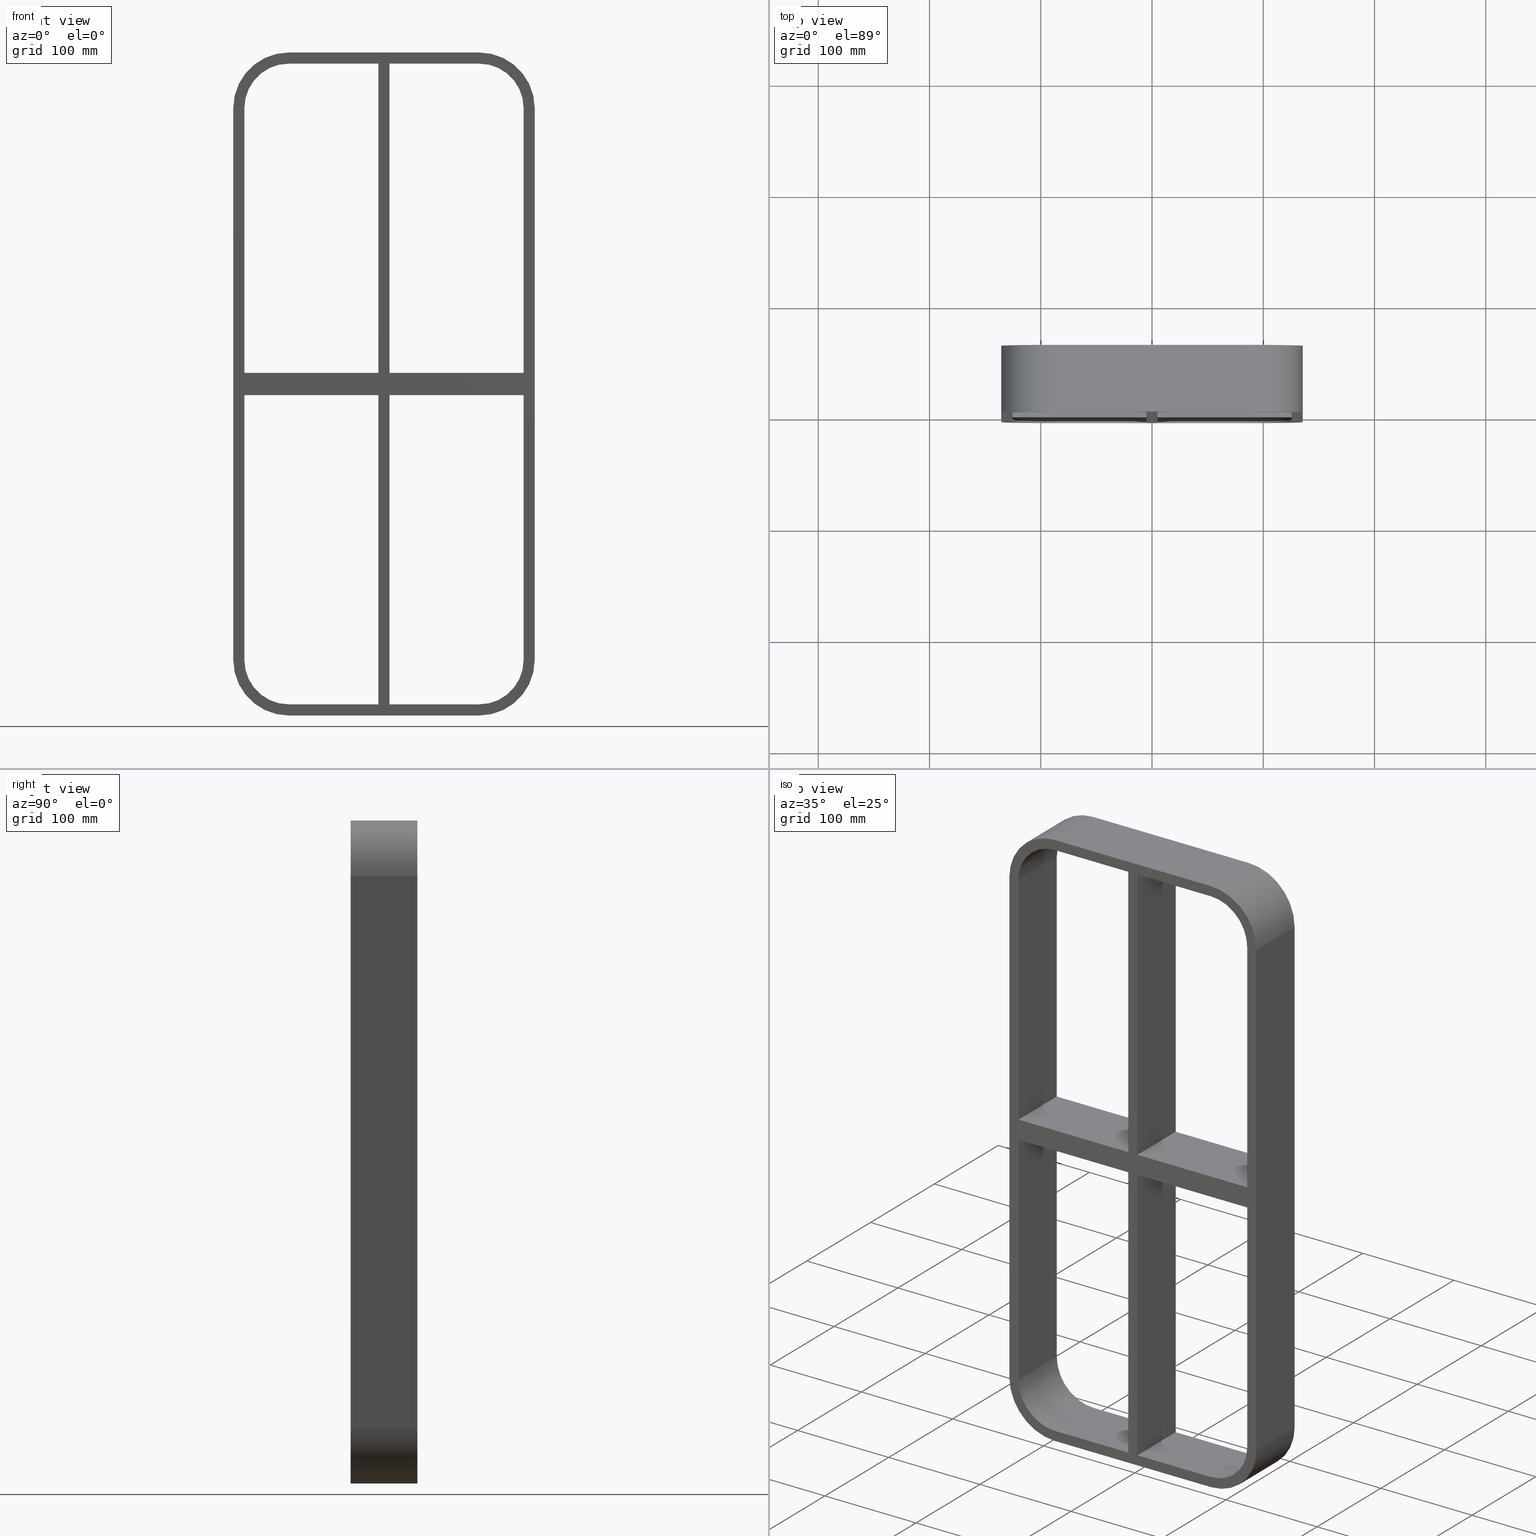
[diagram: canonical four-view strip — front | top / right | iso, engineering-drawing reading convention]
A machine part, canonical four-view strip (front | top / right | iso — engineering-drawing reading convention). The complete STEP part file that produces these views, byte-faithful:
ISO-10303-21;
HEADER;
/****************************************************************
 * Generated by software with PDElib inside                    *
 * PDElib Version v51a, created Wed 11/30/2011                  *
 * ITI Transcendata (http://www.transcendata.com/)              *
 ****************************************************************/
FILE_DESCRIPTION((''),'2;1');
FILE_NAME('N:\\Projects\\Ongoing_Projects\\12403 Transit Designer\\Product-data\\Product Data\\Transit designer Cad Generator\\CreatedFiles\\STEP\\SRCR40-8+8X2.stp','2014-10-31T11:31:51',(''),(''),'Autodesk Inventor 2013','Autodesk Inventor 2013','');
FILE_SCHEMA(('AUTOMOTIVE_DESIGN { 1 0 10303 214 1 1 1 1 }'));
ENDSEC;
DATA;
#5=APPLICATION_CONTEXT('automotive design');
#6=APPLICATION_PROTOCOL_DEFINITION('International Standard','automotive_design',2001,#5);
#7=PRODUCT_CONTEXT('',#5,'mechanical');
#8=PRODUCT('GH-ISO','GH-ISO',$,(#7));
#9=PRODUCT_RELATED_PRODUCT_CATEGORY('part',$,(#8));
#10=PRODUCT_DEFINITION_FORMATION('',$,#8);
#11=PRODUCT_DEFINITION_CONTEXT('part definition',#5,'design');
#12=PRODUCT_DEFINITION('',$,#10,#11);
#18=(NAMED_UNIT(*)PLANE_ANGLE_UNIT()SI_UNIT($,.RADIAN.));
#19=DIMENSIONAL_EXPONENTS(0.0,0.0,0.0,0.0,0.0,0.0,0.0);
#20=PLANE_ANGLE_MEASURE_WITH_UNIT(PLANE_ANGLE_MEASURE(0.0174532925),#18);
#24=(CONVERSION_BASED_UNIT('DEGREE',#20)NAMED_UNIT(#19)PLANE_ANGLE_UNIT());
#28=(NAMED_UNIT(*)SI_UNIT($,.STERADIAN.)SOLID_ANGLE_UNIT());
#32=(LENGTH_UNIT()NAMED_UNIT(*)SI_UNIT(.MILLI.,.METRE.));
#34=UNCERTAINTY_MEASURE_WITH_UNIT(LENGTH_MEASURE(0.01),#32,'DISTANCE_ACCURACY_VALUE','');
#36=(GEOMETRIC_REPRESENTATION_CONTEXT(3)GLOBAL_UNCERTAINTY_ASSIGNED_CONTEXT((#34))GLOBAL_UNIT_ASSIGNED_CONTEXT((#24,#28,#32))REPRESENTATION_CONTEXT('None','None'));
#37=AXIS2_PLACEMENT_3D('',#38,#39,#40);
#38=CARTESIAN_POINT('',(0.0,0.0,0.0));
#39=DIRECTION('',(0.0,0.0,1.0));
#40=DIRECTION('',(1.0,0.0,0.0));
#41=SHAPE_REPRESENTATION('',(#37),#36);
#42=PRODUCT_DEFINITION_SHAPE('','',#12);
#43=SHAPE_DEFINITION_REPRESENTATION(#42,#41);
#49=(NAMED_UNIT(*)PLANE_ANGLE_UNIT()SI_UNIT($,.RADIAN.));
#50=DIMENSIONAL_EXPONENTS(0.0,0.0,0.0,0.0,0.0,0.0,0.0);
#51=PLANE_ANGLE_MEASURE_WITH_UNIT(PLANE_ANGLE_MEASURE(0.0174532925),#49);
#55=(CONVERSION_BASED_UNIT('DEGREE',#51)NAMED_UNIT(#50)PLANE_ANGLE_UNIT());
#59=(NAMED_UNIT(*)SI_UNIT($,.STERADIAN.)SOLID_ANGLE_UNIT());
#63=(LENGTH_UNIT()NAMED_UNIT(*)SI_UNIT(.MILLI.,.METRE.));
#65=UNCERTAINTY_MEASURE_WITH_UNIT(LENGTH_MEASURE(0.000001),#63,'DISTANCE_ACCURACY_VALUE','');
#67=(GEOMETRIC_REPRESENTATION_CONTEXT(3)GLOBAL_UNCERTAINTY_ASSIGNED_CONTEXT((#65))GLOBAL_UNIT_ASSIGNED_CONTEXT((#55,#59,#63))REPRESENTATION_CONTEXT('','3D'));
#68=CARTESIAN_POINT('',(125.50000000000182,-3.0,-10.00000000000929));
#69=DIRECTION('',(0.0,0.0,-1.0));
#70=DIRECTION('',(-1.0,0.0,0.0));
#71=AXIS2_PLACEMENT_3D('',#68,#69,#70);
#72=PLANE('',#71);
#73=CARTESIAN_POINT('',(5.0,57.0,-10.000000000009333));
#74=VERTEX_POINT('',#73);
#75=CARTESIAN_POINT('',(5.0,-3.0,-10.000000000009333));
#76=VERTEX_POINT('',#75);
#77=CARTESIAN_POINT('',(5.0,57.0,-10.000000000009347));
#78=DIRECTION('',(0.0,-1.0,0.0));
#79=VECTOR('',#78,60.0);
#80=LINE('',#77,#79);
#81=EDGE_CURVE('',#74,#76,#80,.T.);
#82=ORIENTED_EDGE('',*,*,#81,.F.);
#83=CARTESIAN_POINT('',(125.5000000000018,57.0,-10.00000000000929));
#84=VERTEX_POINT('',#83);
#85=CARTESIAN_POINT('',(125.50000000000182,57.0,-10.00000000000929));
#86=DIRECTION('',(-1.0,0.0,0.0));
#87=VECTOR('',#86,120.50000000000182);
#88=LINE('',#85,#87);
#89=EDGE_CURVE('',#84,#74,#88,.T.);
#90=ORIENTED_EDGE('',*,*,#89,.F.);
#91=CARTESIAN_POINT('',(125.50000000000182,-3.0,-10.00000000000929));
#92=VERTEX_POINT('',#91);
#93=CARTESIAN_POINT('',(125.50000000000004,-3.0,-10.000000000009308));
#94=DIRECTION('',(0.0,1.0,0.0));
#95=VECTOR('',#94,60.000000000000007);
#96=LINE('',#93,#95);
#97=EDGE_CURVE('',#92,#84,#96,.T.);
#98=ORIENTED_EDGE('',*,*,#97,.F.);
#99=CARTESIAN_POINT('',(125.50000000000182,-3.0,-10.00000000000929));
#100=DIRECTION('',(-1.0,0.0,0.0));
#101=VECTOR('',#100,120.50000000000182);
#102=LINE('',#99,#101);
#103=EDGE_CURVE('',#92,#76,#102,.T.);
#104=ORIENTED_EDGE('',*,*,#103,.T.);
#105=EDGE_LOOP('',(#82,#90,#98,#104));
#106=FACE_OUTER_BOUND('',#105,.T.);
#107=ADVANCED_FACE('',(#106),#72,.T.);
#108=CARTESIAN_POINT('',(125.50000000000182,-3.0,-10.00000000000929));
#109=DIRECTION('',(0.0,0.0,-1.0));
#110=DIRECTION('',(-1.0,0.0,0.0));
#111=AXIS2_PLACEMENT_3D('',#108,#109,#110);
#112=PLANE('',#111);
#113=CARTESIAN_POINT('',(-5.000000000001457,-3.0,-10.000000000009337));
#114=VERTEX_POINT('',#113);
#115=CARTESIAN_POINT('',(-5.000000000001457,57.0,-10.000000000009337));
#116=VERTEX_POINT('',#115);
#117=CARTESIAN_POINT('',(-5.000000000001457,-3.0,-10.000000000009347));
#118=DIRECTION('',(0.0,1.0,0.0));
#119=VECTOR('',#118,60.0);
#120=LINE('',#117,#119);
#121=EDGE_CURVE('',#114,#116,#120,.T.);
#122=ORIENTED_EDGE('',*,*,#121,.F.);
#123=CARTESIAN_POINT('',(-125.49999999999977,-3.0,-10.000000000009379));
#124=VERTEX_POINT('',#123);
#125=CARTESIAN_POINT('',(-5.00000000000145,-3.0,-10.000000000009337));
#126=DIRECTION('',(-1.0,0.0,0.0));
#127=VECTOR('',#126,120.49999999999832);
#128=LINE('',#125,#127);
#129=EDGE_CURVE('',#114,#124,#128,.T.);
#130=ORIENTED_EDGE('',*,*,#129,.T.);
#131=CARTESIAN_POINT('',(-125.49999999999977,57.0,-10.000000000009379));
#132=VERTEX_POINT('',#131);
#133=CARTESIAN_POINT('',(-125.50000000000004,57.000000000000007,-10.000000000009406));
#134=DIRECTION('',(0.0,-1.0,0.0));
#135=VECTOR('',#134,60.000000000000007);
#136=LINE('',#133,#135);
#137=EDGE_CURVE('',#132,#124,#136,.T.);
#138=ORIENTED_EDGE('',*,*,#137,.F.);
#139=CARTESIAN_POINT('',(-5.00000000000145,57.0,-10.000000000009337));
#140=DIRECTION('',(-1.0,0.0,0.0));
#141=VECTOR('',#140,120.49999999999832);
#142=LINE('',#139,#141);
#143=EDGE_CURVE('',#116,#132,#142,.T.);
#144=ORIENTED_EDGE('',*,*,#143,.F.);
#145=EDGE_LOOP('',(#122,#130,#138,#144));
#146=FACE_OUTER_BOUND('',#145,.T.);
#147=ADVANCED_FACE('',(#146),#112,.T.);
#148=CARTESIAN_POINT('',(-125.49999999999977,-3.0,10.0));
#149=DIRECTION('',(0.0,0.0,1.0));
#150=DIRECTION('',(1.0,0.0,0.0));
#151=AXIS2_PLACEMENT_3D('',#148,#149,#150);
#152=PLANE('',#151);
#153=CARTESIAN_POINT('',(5.0,-3.0,10.0));
#154=VERTEX_POINT('',#153);
#155=CARTESIAN_POINT('',(5.0,57.0,10.0));
#156=VERTEX_POINT('',#155);
#157=CARTESIAN_POINT('',(5.0,-3.0,10.0));
#158=DIRECTION('',(0.0,1.0,0.0));
#159=VECTOR('',#158,60.0);
#160=LINE('',#157,#159);
#161=EDGE_CURVE('',#154,#156,#160,.T.);
#162=ORIENTED_EDGE('',*,*,#161,.F.);
#163=CARTESIAN_POINT('',(125.4999999999999,-3.0,10.0));
#164=VERTEX_POINT('',#163);
#165=CARTESIAN_POINT('',(5.0,-3.0,10.0));
#166=DIRECTION('',(1.0,0.0,0.0));
#167=VECTOR('',#166,120.49999999999989);
#168=LINE('',#165,#167);
#169=EDGE_CURVE('',#154,#164,#168,.T.);
#170=ORIENTED_EDGE('',*,*,#169,.T.);
#171=CARTESIAN_POINT('',(125.49999999999989,57.0,10.0));
#172=VERTEX_POINT('',#171);
#173=CARTESIAN_POINT('',(125.50000000000004,57.000000000000007,10.0));
#174=DIRECTION('',(0.0,-1.0,0.0));
#175=VECTOR('',#174,60.000000000000007);
#176=LINE('',#173,#175);
#177=EDGE_CURVE('',#172,#164,#176,.T.);
#178=ORIENTED_EDGE('',*,*,#177,.F.);
#179=CARTESIAN_POINT('',(5.0,57.0,10.0));
#180=DIRECTION('',(1.0,0.0,0.0));
#181=VECTOR('',#180,120.49999999999989);
#182=LINE('',#179,#181);
#183=EDGE_CURVE('',#156,#172,#182,.T.);
#184=ORIENTED_EDGE('',*,*,#183,.F.);
#185=EDGE_LOOP('',(#162,#170,#178,#184));
#186=FACE_OUTER_BOUND('',#185,.T.);
#187=ADVANCED_FACE('',(#186),#152,.T.);
#188=CARTESIAN_POINT('',(-125.49999999999977,-3.0,10.0));
#189=DIRECTION('',(0.0,0.0,1.0));
#190=DIRECTION('',(1.0,0.0,0.0));
#191=AXIS2_PLACEMENT_3D('',#188,#189,#190);
#192=PLANE('',#191);
#193=CARTESIAN_POINT('',(-5.000000000001457,57.0,10.0));
#194=VERTEX_POINT('',#193);
#195=CARTESIAN_POINT('',(-5.000000000001457,-3.0,10.0));
#196=VERTEX_POINT('',#195);
#197=CARTESIAN_POINT('',(-5.000000000001457,57.0,10.0));
#198=DIRECTION('',(0.0,-1.0,0.0));
#199=VECTOR('',#198,60.0);
#200=LINE('',#197,#199);
#201=EDGE_CURVE('',#194,#196,#200,.T.);
#202=ORIENTED_EDGE('',*,*,#201,.F.);
#203=CARTESIAN_POINT('',(-125.49999999999977,57.0,10.0));
#204=VERTEX_POINT('',#203);
#205=CARTESIAN_POINT('',(-125.49999999999977,57.0,10.0));
#206=DIRECTION('',(1.0,0.0,0.0));
#207=VECTOR('',#206,120.49999999999832);
#208=LINE('',#205,#207);
#209=EDGE_CURVE('',#204,#194,#208,.T.);
#210=ORIENTED_EDGE('',*,*,#209,.F.);
#211=CARTESIAN_POINT('',(-125.49999999999977,-3.0,10.0));
#212=VERTEX_POINT('',#211);
#213=CARTESIAN_POINT('',(-125.50000000000004,-3.0,10.0));
#214=DIRECTION('',(0.0,1.0,0.0));
#215=VECTOR('',#214,60.000000000000007);
#216=LINE('',#213,#215);
#217=EDGE_CURVE('',#212,#204,#216,.T.);
#218=ORIENTED_EDGE('',*,*,#217,.F.);
#219=CARTESIAN_POINT('',(-125.49999999999977,-3.0,10.0));
#220=DIRECTION('',(1.0,0.0,0.0));
#221=VECTOR('',#220,120.49999999999832);
#222=LINE('',#219,#221);
#223=EDGE_CURVE('',#212,#196,#222,.T.);
#224=ORIENTED_EDGE('',*,*,#223,.T.);
#225=EDGE_LOOP('',(#202,#210,#218,#224));
#226=FACE_OUTER_BOUND('',#225,.T.);
#227=ADVANCED_FACE('',(#226),#192,.T.);
#228=CARTESIAN_POINT('',(-125.50000000000004,0.0,-288.00000000000006));
#229=DIRECTION('',(-1.0,0.0,0.0));
#230=DIRECTION('',(0.0,0.0,1.0));
#231=AXIS2_PLACEMENT_3D('',#228,#229,#230);
#232=PLANE('',#231);
#233=ORIENTED_EDGE('',*,*,#217,.T.);
#234=CARTESIAN_POINT('',(-125.50000000000004,57.0,248.00000000000006));
#235=VERTEX_POINT('',#234);
#236=CARTESIAN_POINT('',(-125.50000000000004,57.0,248.0));
#237=DIRECTION('',(0.0,0.0,-1.0));
#238=VECTOR('',#237,238.0);
#239=LINE('',#236,#238);
#240=EDGE_CURVE('',#235,#204,#239,.T.);
#241=ORIENTED_EDGE('',*,*,#240,.F.);
#242=CARTESIAN_POINT('',(-125.50000000000004,-3.0,248.00000000000006));
#243=VERTEX_POINT('',#242);
#244=CARTESIAN_POINT('',(-125.50000000000004,-3.0,248.00000000000006));
#245=DIRECTION('',(0.0,1.0,0.0));
#246=VECTOR('',#245,60.0);
#247=LINE('',#244,#246);
#248=EDGE_CURVE('',#243,#235,#247,.T.);
#249=ORIENTED_EDGE('',*,*,#248,.F.);
#250=CARTESIAN_POINT('',(-125.50000000000004,-3.0,10.0));
#251=DIRECTION('',(0.0,0.0,1.0));
#252=VECTOR('',#251,238.0);
#253=LINE('',#250,#252);
#254=EDGE_CURVE('',#212,#243,#253,.T.);
#255=ORIENTED_EDGE('',*,*,#254,.F.);
#256=EDGE_LOOP('',(#233,#241,#249,#255));
#257=FACE_OUTER_BOUND('',#256,.T.);
#258=ADVANCED_FACE('',(#257),#232,.F.);
#259=CARTESIAN_POINT('',(125.50000000000004,0.0,288.00000000000006));
#260=DIRECTION('',(1.0,0.0,0.0));
#261=DIRECTION('',(0.0,0.0,-1.0));
#262=AXIS2_PLACEMENT_3D('',#259,#260,#261);
#263=PLANE('',#262);
#264=ORIENTED_EDGE('',*,*,#97,.T.);
#265=CARTESIAN_POINT('',(125.50000000000004,57.0,-248.00000000000006));
#266=VERTEX_POINT('',#265);
#267=CARTESIAN_POINT('',(125.50000000000004,57.0,-248.00000000000009));
#268=DIRECTION('',(0.0,0.0,1.0));
#269=VECTOR('',#268,237.99999999999079);
#270=LINE('',#267,#269);
#271=EDGE_CURVE('',#266,#84,#270,.T.);
#272=ORIENTED_EDGE('',*,*,#271,.F.);
#273=CARTESIAN_POINT('',(125.50000000000004,-3.0,-248.00000000000006));
#274=VERTEX_POINT('',#273);
#275=CARTESIAN_POINT('',(125.50000000000004,-3.0,-248.00000000000006));
#276=DIRECTION('',(0.0,1.0,0.0));
#277=VECTOR('',#276,60.0);
#278=LINE('',#275,#277);
#279=EDGE_CURVE('',#274,#266,#278,.T.);
#280=ORIENTED_EDGE('',*,*,#279,.F.);
#281=CARTESIAN_POINT('',(125.50000000000004,-3.0,-10.000000000009294));
#282=DIRECTION('',(0.0,0.0,-1.0));
#283=VECTOR('',#282,237.99999999999079);
#284=LINE('',#281,#283);
#285=EDGE_CURVE('',#92,#274,#284,.T.);
#286=ORIENTED_EDGE('',*,*,#285,.F.);
#287=EDGE_LOOP('',(#264,#272,#280,#286));
#288=FACE_OUTER_BOUND('',#287,.T.);
#289=ADVANCED_FACE('',(#288),#263,.F.);
#290=CARTESIAN_POINT('',(125.50000000000004,0.0,288.00000000000006));
#291=DIRECTION('',(1.0,0.0,0.0));
#292=DIRECTION('',(0.0,0.0,-1.0));
#293=AXIS2_PLACEMENT_3D('',#290,#291,#292);
#294=PLANE('',#293);
#295=ORIENTED_EDGE('',*,*,#177,.T.);
#296=CARTESIAN_POINT('',(125.50000000000004,-3.0,248.00000000000006));
#297=VERTEX_POINT('',#296);
#298=CARTESIAN_POINT('',(125.50000000000004,-3.0,248.00000000000003));
#299=DIRECTION('',(0.0,0.0,-1.0));
#300=VECTOR('',#299,238.00000000000003);
#301=LINE('',#298,#300);
#302=EDGE_CURVE('',#297,#164,#301,.T.);
#303=ORIENTED_EDGE('',*,*,#302,.F.);
#304=CARTESIAN_POINT('',(125.50000000000004,57.0,248.00000000000006));
#305=VERTEX_POINT('',#304);
#306=CARTESIAN_POINT('',(125.50000000000004,57.0,248.00000000000006));
#307=DIRECTION('',(0.0,-1.0,0.0));
#308=VECTOR('',#307,60.0);
#309=LINE('',#306,#308);
#310=EDGE_CURVE('',#305,#297,#309,.T.);
#311=ORIENTED_EDGE('',*,*,#310,.F.);
#312=CARTESIAN_POINT('',(125.50000000000004,57.0,10.0));
#313=DIRECTION('',(0.0,0.0,1.0));
#314=VECTOR('',#313,238.00000000000003);
#315=LINE('',#312,#314);
#316=EDGE_CURVE('',#172,#305,#315,.T.);
#317=ORIENTED_EDGE('',*,*,#316,.F.);
#318=EDGE_LOOP('',(#295,#303,#311,#317));
#319=FACE_OUTER_BOUND('',#318,.T.);
#320=ADVANCED_FACE('',(#319),#294,.F.);
#321=CARTESIAN_POINT('',(-4.489040E-014,57.0,2.950350E-014));
#322=DIRECTION('',(0.0,1.0,0.0));
#323=DIRECTION('',(0.0,0.0,1.0));
#324=AXIS2_PLACEMENT_3D('',#321,#322,#323);
#325=PLANE('',#324);
#326=CARTESIAN_POINT('',(85.499999999999972,57.0,-298.0));
#327=VERTEX_POINT('',#326);
#328=CARTESIAN_POINT('',(135.49999999999997,57.0,-247.99999999999997));
#329=VERTEX_POINT('',#328);
#330=CARTESIAN_POINT('',(85.499999999999972,57.0,-247.99999999999997));
#331=DIRECTION('',(0.0,-1.0,0.0));
#332=DIRECTION('',(0.707106781186547,0.0,-0.707106781186547));
#333=AXIS2_PLACEMENT_3D('',#330,#331,#332);
#334=CIRCLE('',#333,49.999999999999986);
#335=EDGE_CURVE('',#327,#329,#334,.T.);
#336=ORIENTED_EDGE('',*,*,#335,.F.);
#337=CARTESIAN_POINT('',(-85.500000000000043,57.0,-298.0));
#338=VERTEX_POINT('',#337);
#339=CARTESIAN_POINT('',(85.499999999999972,57.0,-298.0));
#340=DIRECTION('',(-1.0,0.0,0.0));
#341=VECTOR('',#340,171.0);
#342=LINE('',#339,#341);
#343=EDGE_CURVE('',#327,#338,#342,.T.);
#344=ORIENTED_EDGE('',*,*,#343,.T.);
#345=CARTESIAN_POINT('',(-135.50000000000006,57.0,-247.99999999999997));
#346=VERTEX_POINT('',#345);
#347=CARTESIAN_POINT('',(-85.500000000000043,57.0,-247.99999999999997));
#348=DIRECTION('',(0.0,-1.0,0.0));
#349=DIRECTION('',(-0.707106781186547,0.0,-0.707106781186547));
#350=AXIS2_PLACEMENT_3D('',#347,#348,#349);
#351=CIRCLE('',#350,49.999999999999986);
#352=EDGE_CURVE('',#346,#338,#351,.T.);
#353=ORIENTED_EDGE('',*,*,#352,.F.);
#354=CARTESIAN_POINT('',(-135.50000000000006,57.0,248.00000000000006));
#355=VERTEX_POINT('',#354);
#356=CARTESIAN_POINT('',(-135.50000000000006,57.0,-248.0));
#357=DIRECTION('',(0.0,0.0,1.0));
#358=VECTOR('',#357,496.0);
#359=LINE('',#356,#358);
#360=EDGE_CURVE('',#346,#355,#359,.T.);
#361=ORIENTED_EDGE('',*,*,#360,.T.);
#362=CARTESIAN_POINT('',(-85.500000000000043,57.0,298.00000000000006));
#363=VERTEX_POINT('',#362);
#364=CARTESIAN_POINT('',(-85.500000000000043,57.0,248.00000000000006));
#365=DIRECTION('',(0.0,-1.0,0.0));
#366=DIRECTION('',(-0.707106781186547,0.0,0.707106781186547));
#367=AXIS2_PLACEMENT_3D('',#364,#365,#366);
#368=CIRCLE('',#367,49.999999999999986);
#369=EDGE_CURVE('',#363,#355,#368,.T.);
#370=ORIENTED_EDGE('',*,*,#369,.F.);
#371=CARTESIAN_POINT('',(85.499999999999972,57.0,298.00000000000006));
#372=VERTEX_POINT('',#371);
#373=CARTESIAN_POINT('',(-85.500000000000057,57.0,298.00000000000006));
#374=DIRECTION('',(1.0,0.0,0.0));
#375=VECTOR('',#374,171.0);
#376=LINE('',#373,#375);
#377=EDGE_CURVE('',#363,#372,#376,.T.);
#378=ORIENTED_EDGE('',*,*,#377,.T.);
#379=CARTESIAN_POINT('',(135.49999999999997,57.0,248.00000000000006));
#380=VERTEX_POINT('',#379);
#381=CARTESIAN_POINT('',(85.499999999999972,57.0,248.00000000000006));
#382=DIRECTION('',(0.0,-1.0,0.0));
#383=DIRECTION('',(0.707106781186547,0.0,0.707106781186547));
#384=AXIS2_PLACEMENT_3D('',#381,#382,#383);
#385=CIRCLE('',#384,49.999999999999986);
#386=EDGE_CURVE('',#380,#372,#385,.T.);
#387=ORIENTED_EDGE('',*,*,#386,.F.);
#388=CARTESIAN_POINT('',(135.49999999999997,57.0,248.00000000000006));
#389=DIRECTION('',(0.0,0.0,-1.0));
#390=VECTOR('',#389,496.0);
#391=LINE('',#388,#390);
#392=EDGE_CURVE('',#380,#329,#391,.T.);
#393=ORIENTED_EDGE('',*,*,#392,.T.);
#394=EDGE_LOOP('',(#336,#344,#353,#361,#370,#378,#387,#393));
#395=FACE_OUTER_BOUND('',#394,.T.);
#396=CARTESIAN_POINT('',(-125.50000000000004,57.0,-248.00000000000006));
#397=VERTEX_POINT('',#396);
#398=CARTESIAN_POINT('',(-125.50000000000004,57.0,-10.000000000009379));
#399=DIRECTION('',(0.0,0.0,-1.0));
#400=VECTOR('',#399,237.99999999999068);
#401=LINE('',#398,#400);
#402=EDGE_CURVE('',#132,#397,#401,.T.);
#403=ORIENTED_EDGE('',*,*,#402,.T.);
#404=CARTESIAN_POINT('',(-85.500000000000043,57.0,-288.00000000000006));
#405=VERTEX_POINT('',#404);
#406=CARTESIAN_POINT('',(-85.500000000000043,57.0,-248.00000000000006));
#407=DIRECTION('',(0.0,1.0,0.0));
#408=DIRECTION('',(-0.707106781186547,0.0,-0.707106781186547));
#409=AXIS2_PLACEMENT_3D('',#406,#407,#408);
#410=CIRCLE('',#409,39.999999999999993);
#411=EDGE_CURVE('',#405,#397,#410,.T.);
#412=ORIENTED_EDGE('',*,*,#411,.F.);
#413=CARTESIAN_POINT('',(-5.000000000001403,57.0,-288.00000000000006));
#414=VERTEX_POINT('',#413);
#415=CARTESIAN_POINT('',(-85.500000000000028,57.0,-288.00000000000006));
#416=DIRECTION('',(1.0,0.0,0.0));
#417=VECTOR('',#416,80.499999999998636);
#418=LINE('',#415,#417);
#419=EDGE_CURVE('',#405,#414,#418,.T.);
#420=ORIENTED_EDGE('',*,*,#419,.T.);
#421=CARTESIAN_POINT('',(-5.000000000001403,57.0,-288.00000000000006));
#422=DIRECTION('',(0.0,0.0,1.0));
#423=VECTOR('',#422,277.99999999999068);
#424=LINE('',#421,#423);
#425=EDGE_CURVE('',#414,#116,#424,.T.);
#426=ORIENTED_EDGE('',*,*,#425,.T.);
#427=ORIENTED_EDGE('',*,*,#143,.T.);
#428=EDGE_LOOP('',(#403,#412,#420,#426,#427));
#429=FACE_BOUND('',#428,.T.);
#430=ORIENTED_EDGE('',*,*,#316,.T.);
#431=CARTESIAN_POINT('',(85.500000000000043,57.0,288.00000000000006));
#432=VERTEX_POINT('',#431);
#433=CARTESIAN_POINT('',(85.500000000000043,57.0,248.00000000000006));
#434=DIRECTION('',(0.0,1.0,0.0));
#435=DIRECTION('',(0.707106781186547,0.0,0.707106781186547));
#436=AXIS2_PLACEMENT_3D('',#433,#434,#435);
#437=CIRCLE('',#436,39.999999999999993);
#438=EDGE_CURVE('',#432,#305,#437,.T.);
#439=ORIENTED_EDGE('',*,*,#438,.F.);
#440=CARTESIAN_POINT('',(5.0,57.0,288.00000000000006));
#441=VERTEX_POINT('',#440);
#442=CARTESIAN_POINT('',(85.500000000000057,57.0,288.00000000000006));
#443=DIRECTION('',(-1.0,0.0,0.0));
#444=VECTOR('',#443,80.500000000000057);
#445=LINE('',#442,#444);
#446=EDGE_CURVE('',#432,#441,#445,.T.);
#447=ORIENTED_EDGE('',*,*,#446,.T.);
#448=CARTESIAN_POINT('',(5.0,57.0,288.00000000000006));
#449=DIRECTION('',(0.0,0.0,-1.0));
#450=VECTOR('',#449,278.00000000000006);
#451=LINE('',#448,#450);
#452=EDGE_CURVE('',#441,#156,#451,.T.);
#453=ORIENTED_EDGE('',*,*,#452,.T.);
#454=ORIENTED_EDGE('',*,*,#183,.T.);
#455=EDGE_LOOP('',(#430,#439,#447,#453,#454));
#456=FACE_BOUND('',#455,.T.);
#457=ORIENTED_EDGE('',*,*,#89,.T.);
#458=CARTESIAN_POINT('',(5.0,57.0,-287.99999999998471));
#459=VERTEX_POINT('',#458);
#460=CARTESIAN_POINT('',(5.0,57.0,-10.000000000009322));
#461=DIRECTION('',(0.0,0.0,-1.0));
#462=VECTOR('',#461,277.99999999997539);
#463=LINE('',#460,#462);
#464=EDGE_CURVE('',#74,#459,#463,.T.);
#465=ORIENTED_EDGE('',*,*,#464,.T.);
#466=CARTESIAN_POINT('',(85.500000000000043,57.0,-288.00000000000006));
#467=VERTEX_POINT('',#466);
#468=CARTESIAN_POINT('',(5.0,57.0,-288.00000000000006));
#469=DIRECTION('',(1.0,0.0,0.0));
#470=VECTOR('',#469,80.500000000000043);
#471=LINE('',#468,#470);
#472=EDGE_CURVE('',#459,#467,#471,.T.);
#473=ORIENTED_EDGE('',*,*,#472,.T.);
#474=CARTESIAN_POINT('',(85.500000000000043,57.0,-248.00000000000006));
#475=DIRECTION('',(0.0,1.0,0.0));
#476=DIRECTION('',(0.707106781186547,0.0,-0.707106781186547));
#477=AXIS2_PLACEMENT_3D('',#474,#475,#476);
#478=CIRCLE('',#477,39.999999999999993);
#479=EDGE_CURVE('',#266,#467,#478,.T.);
#480=ORIENTED_EDGE('',*,*,#479,.F.);
#481=ORIENTED_EDGE('',*,*,#271,.T.);
#482=EDGE_LOOP('',(#457,#465,#473,#480,#481));
#483=FACE_BOUND('',#482,.T.);
#484=ORIENTED_EDGE('',*,*,#209,.T.);
#485=CARTESIAN_POINT('',(-5.00000000000151,57.0,288.00000000000006));
#486=VERTEX_POINT('',#485);
#487=CARTESIAN_POINT('',(-5.000000000001458,57.0,10.0));
#488=DIRECTION('',(0.0,0.0,1.0));
#489=VECTOR('',#488,278.00000000000006);
#490=LINE('',#487,#489);
#491=EDGE_CURVE('',#194,#486,#490,.T.);
#492=ORIENTED_EDGE('',*,*,#491,.T.);
#493=CARTESIAN_POINT('',(-85.500000000000043,57.0,288.00000000000006));
#494=VERTEX_POINT('',#493);
#495=CARTESIAN_POINT('',(-5.000000000001514,57.0,288.00000000000006));
#496=DIRECTION('',(-1.0,0.0,0.0));
#497=VECTOR('',#496,80.499999999998522);
#498=LINE('',#495,#497);
#499=EDGE_CURVE('',#486,#494,#498,.T.);
#500=ORIENTED_EDGE('',*,*,#499,.T.);
#501=CARTESIAN_POINT('',(-85.500000000000043,57.0,248.00000000000006));
#502=DIRECTION('',(0.0,1.0,0.0));
#503=DIRECTION('',(-0.707106781186547,0.0,0.707106781186547));
#504=AXIS2_PLACEMENT_3D('',#501,#502,#503);
#505=CIRCLE('',#504,39.999999999999993);
#506=EDGE_CURVE('',#235,#494,#505,.T.);
#507=ORIENTED_EDGE('',*,*,#506,.F.);
#508=ORIENTED_EDGE('',*,*,#240,.T.);
#509=EDGE_LOOP('',(#484,#492,#500,#507,#508));
#510=FACE_BOUND('',#509,.T.);
#511=ADVANCED_FACE('',(#395,#429,#456,#483,#510),#325,.T.);
#512=CARTESIAN_POINT('',(-5.000000000001403,-3.0,-288.00000000000006));
#513=DIRECTION('',(-1.0,0.0,0.0));
#514=DIRECTION('',(0.0,0.0,1.0));
#515=AXIS2_PLACEMENT_3D('',#512,#513,#514);
#516=PLANE('',#515);
#517=ORIENTED_EDGE('',*,*,#201,.T.);
#518=CARTESIAN_POINT('',(-5.00000000000151,-3.0,288.00000000000006));
#519=VERTEX_POINT('',#518);
#520=CARTESIAN_POINT('',(-5.000000000001458,-3.0,10.0));
#521=DIRECTION('',(0.0,0.0,1.0));
#522=VECTOR('',#521,278.00000000000006);
#523=LINE('',#520,#522);
#524=EDGE_CURVE('',#196,#519,#523,.T.);
#525=ORIENTED_EDGE('',*,*,#524,.T.);
#526=CARTESIAN_POINT('',(-5.00000000000151,57.000000000000007,288.00000000000006));
#527=DIRECTION('',(0.0,-1.0,0.0));
#528=VECTOR('',#527,60.000000000000007);
#529=LINE('',#526,#528);
#530=EDGE_CURVE('',#486,#519,#529,.T.);
#531=ORIENTED_EDGE('',*,*,#530,.F.);
#532=ORIENTED_EDGE('',*,*,#491,.F.);
#533=EDGE_LOOP('',(#517,#525,#531,#532));
#534=FACE_OUTER_BOUND('',#533,.T.);
#535=ADVANCED_FACE('',(#534),#516,.T.);
#536=CARTESIAN_POINT('',(5.0,-3.0,288.00000000000006));
#537=DIRECTION('',(1.0,0.0,0.0));
#538=DIRECTION('',(0.0,0.0,-1.0));
#539=AXIS2_PLACEMENT_3D('',#536,#537,#538);
#540=PLANE('',#539);
#541=ORIENTED_EDGE('',*,*,#161,.T.);
#542=ORIENTED_EDGE('',*,*,#452,.F.);
#543=CARTESIAN_POINT('',(5.0,-3.0,288.00000000000006));
#544=VERTEX_POINT('',#543);
#545=CARTESIAN_POINT('',(5.0,-3.0,288.00000000000006));
#546=DIRECTION('',(0.0,1.0,0.0));
#547=VECTOR('',#546,60.000000000000007);
#548=LINE('',#545,#547);
#549=EDGE_CURVE('',#544,#441,#548,.T.);
#550=ORIENTED_EDGE('',*,*,#549,.F.);
#551=CARTESIAN_POINT('',(5.0,-3.0,288.00000000000006));
#552=DIRECTION('',(0.0,0.0,-1.0));
#553=VECTOR('',#552,278.00000000000006);
#554=LINE('',#551,#553);
#555=EDGE_CURVE('',#544,#154,#554,.T.);
#556=ORIENTED_EDGE('',*,*,#555,.T.);
#557=EDGE_LOOP('',(#541,#542,#550,#556));
#558=FACE_OUTER_BOUND('',#557,.T.);
#559=ADVANCED_FACE('',(#558),#540,.T.);
#560=CARTESIAN_POINT('',(-5.000000000001403,-3.0,-288.00000000000006));
#561=DIRECTION('',(-1.0,0.0,0.0));
#562=DIRECTION('',(0.0,0.0,1.0));
#563=AXIS2_PLACEMENT_3D('',#560,#561,#562);
#564=PLANE('',#563);
#565=ORIENTED_EDGE('',*,*,#121,.T.);
#566=ORIENTED_EDGE('',*,*,#425,.F.);
#567=CARTESIAN_POINT('',(-5.000000000001403,-3.0,-288.00000000000006));
#568=VERTEX_POINT('',#567);
#569=CARTESIAN_POINT('',(-5.000000000001403,-3.0,-288.00000000000006));
#570=DIRECTION('',(0.0,1.0,0.0));
#571=VECTOR('',#570,60.000000000000007);
#572=LINE('',#569,#571);
#573=EDGE_CURVE('',#568,#414,#572,.T.);
#574=ORIENTED_EDGE('',*,*,#573,.F.);
#575=CARTESIAN_POINT('',(-5.000000000001403,-3.0,-288.00000000000006));
#576=DIRECTION('',(0.0,0.0,1.0));
#577=VECTOR('',#576,277.99999999999068);
#578=LINE('',#575,#577);
#579=EDGE_CURVE('',#568,#114,#578,.T.);
#580=ORIENTED_EDGE('',*,*,#579,.T.);
#581=EDGE_LOOP('',(#565,#566,#574,#580));
#582=FACE_OUTER_BOUND('',#581,.T.);
#583=ADVANCED_FACE('',(#582),#564,.T.);
#584=CARTESIAN_POINT('',(5.0,-3.0,288.00000000000006));
#585=DIRECTION('',(1.0,0.0,0.0));
#586=DIRECTION('',(0.0,0.0,-1.0));
#587=AXIS2_PLACEMENT_3D('',#584,#585,#586);
#588=PLANE('',#587);
#589=ORIENTED_EDGE('',*,*,#81,.T.);
#590=CARTESIAN_POINT('',(5.0,-3.0,-287.99999999998471));
#591=VERTEX_POINT('',#590);
#592=CARTESIAN_POINT('',(5.0,-3.0,-10.000000000009322));
#593=DIRECTION('',(0.0,0.0,-1.0));
#594=VECTOR('',#593,277.99999999997539);
#595=LINE('',#592,#594);
#596=EDGE_CURVE('',#76,#591,#595,.T.);
#597=ORIENTED_EDGE('',*,*,#596,.T.);
#598=CARTESIAN_POINT('',(5.0,57.000000000000007,-288.00000000000006));
#599=DIRECTION('',(0.0,-1.0,0.0));
#600=VECTOR('',#599,60.000000000000007);
#601=LINE('',#598,#600);
#602=EDGE_CURVE('',#459,#591,#601,.T.);
#603=ORIENTED_EDGE('',*,*,#602,.F.);
#604=ORIENTED_EDGE('',*,*,#464,.F.);
#605=EDGE_LOOP('',(#589,#597,#603,#604));
#606=FACE_OUTER_BOUND('',#605,.T.);
#607=ADVANCED_FACE('',(#606),#588,.T.);
#608=CARTESIAN_POINT('',(125.50000000000004,0.0,-288.00000000000006));
#609=DIRECTION('',(0.0,0.0,-1.0));
#610=DIRECTION('',(-1.0,0.0,0.0));
#611=AXIS2_PLACEMENT_3D('',#608,#609,#610);
#612=PLANE('',#611);
#613=ORIENTED_EDGE('',*,*,#573,.T.);
#614=ORIENTED_EDGE('',*,*,#419,.F.);
#615=CARTESIAN_POINT('',(-85.500000000000043,-3.0,-288.00000000000006));
#616=VERTEX_POINT('',#615);
#617=CARTESIAN_POINT('',(-85.500000000000043,-3.0,-288.00000000000006));
#618=DIRECTION('',(0.0,1.0,0.0));
#619=VECTOR('',#618,60.0);
#620=LINE('',#617,#619);
#621=EDGE_CURVE('',#616,#405,#620,.T.);
#622=ORIENTED_EDGE('',*,*,#621,.F.);
#623=CARTESIAN_POINT('',(-5.0000000000014,-3.0,-288.00000000000006));
#624=DIRECTION('',(-1.0,0.0,0.0));
#625=VECTOR('',#624,80.499999999998636);
#626=LINE('',#623,#625);
#627=EDGE_CURVE('',#568,#616,#626,.T.);
#628=ORIENTED_EDGE('',*,*,#627,.F.);
#629=EDGE_LOOP('',(#613,#614,#622,#628));
#630=FACE_OUTER_BOUND('',#629,.T.);
#631=ADVANCED_FACE('',(#630),#612,.F.);
#632=CARTESIAN_POINT('',(125.50000000000004,0.0,-288.00000000000006));
#633=DIRECTION('',(0.0,0.0,-1.0));
#634=DIRECTION('',(-1.0,0.0,0.0));
#635=AXIS2_PLACEMENT_3D('',#632,#633,#634);
#636=PLANE('',#635);
#637=ORIENTED_EDGE('',*,*,#602,.T.);
#638=CARTESIAN_POINT('',(85.500000000000043,-3.0,-288.00000000000006));
#639=VERTEX_POINT('',#638);
#640=CARTESIAN_POINT('',(85.500000000000043,-3.0,-288.00000000000006));
#641=DIRECTION('',(-1.0,0.0,0.0));
#642=VECTOR('',#641,80.500000000000043);
#643=LINE('',#640,#642);
#644=EDGE_CURVE('',#639,#591,#643,.T.);
#645=ORIENTED_EDGE('',*,*,#644,.F.);
#646=CARTESIAN_POINT('',(85.500000000000043,57.0,-288.00000000000006));
#647=DIRECTION('',(0.0,-1.0,0.0));
#648=VECTOR('',#647,60.0);
#649=LINE('',#646,#648);
#650=EDGE_CURVE('',#467,#639,#649,.T.);
#651=ORIENTED_EDGE('',*,*,#650,.F.);
#652=ORIENTED_EDGE('',*,*,#472,.F.);
#653=EDGE_LOOP('',(#637,#645,#651,#652));
#654=FACE_OUTER_BOUND('',#653,.T.);
#655=ADVANCED_FACE('',(#654),#636,.F.);
#656=CARTESIAN_POINT('',(-125.50000000000004,0.0,288.00000000000006));
#657=DIRECTION('',(0.0,0.0,1.0));
#658=DIRECTION('',(1.0,0.0,0.0));
#659=AXIS2_PLACEMENT_3D('',#656,#657,#658);
#660=PLANE('',#659);
#661=ORIENTED_EDGE('',*,*,#549,.T.);
#662=ORIENTED_EDGE('',*,*,#446,.F.);
#663=CARTESIAN_POINT('',(85.500000000000043,-3.0,288.00000000000006));
#664=VERTEX_POINT('',#663);
#665=CARTESIAN_POINT('',(85.500000000000043,-3.0,288.00000000000006));
#666=DIRECTION('',(0.0,1.0,0.0));
#667=VECTOR('',#666,60.0);
#668=LINE('',#665,#667);
#669=EDGE_CURVE('',#664,#432,#668,.T.);
#670=ORIENTED_EDGE('',*,*,#669,.F.);
#671=CARTESIAN_POINT('',(4.999999999999993,-3.0,288.00000000000006));
#672=DIRECTION('',(1.0,0.0,0.0));
#673=VECTOR('',#672,80.500000000000057);
#674=LINE('',#671,#673);
#675=EDGE_CURVE('',#544,#664,#674,.T.);
#676=ORIENTED_EDGE('',*,*,#675,.F.);
#677=EDGE_LOOP('',(#661,#662,#670,#676));
#678=FACE_OUTER_BOUND('',#677,.T.);
#679=ADVANCED_FACE('',(#678),#660,.F.);
#680=CARTESIAN_POINT('',(-125.50000000000004,0.0,288.00000000000006));
#681=DIRECTION('',(0.0,0.0,1.0));
#682=DIRECTION('',(1.0,0.0,0.0));
#683=AXIS2_PLACEMENT_3D('',#680,#681,#682);
#684=PLANE('',#683);
#685=ORIENTED_EDGE('',*,*,#530,.T.);
#686=CARTESIAN_POINT('',(-85.500000000000043,-3.0,288.00000000000006));
#687=VERTEX_POINT('',#686);
#688=CARTESIAN_POINT('',(-85.500000000000043,-3.0,288.00000000000006));
#689=DIRECTION('',(1.0,0.0,0.0));
#690=VECTOR('',#689,80.499999999998522);
#691=LINE('',#688,#690);
#692=EDGE_CURVE('',#687,#519,#691,.T.);
#693=ORIENTED_EDGE('',*,*,#692,.F.);
#694=CARTESIAN_POINT('',(-85.500000000000043,57.0,288.00000000000006));
#695=DIRECTION('',(0.0,-1.0,0.0));
#696=VECTOR('',#695,60.0);
#697=LINE('',#694,#696);
#698=EDGE_CURVE('',#494,#687,#697,.T.);
#699=ORIENTED_EDGE('',*,*,#698,.F.);
#700=ORIENTED_EDGE('',*,*,#499,.F.);
#701=EDGE_LOOP('',(#685,#693,#699,#700));
#702=FACE_OUTER_BOUND('',#701,.T.);
#703=ADVANCED_FACE('',(#702),#684,.F.);
#704=CARTESIAN_POINT('',(85.499999999999972,0.0,-247.99999999999997));
#705=DIRECTION('',(0.0,1.0,0.0));
#706=DIRECTION('',(0.707106781186547,0.0,-0.707106781186547));
#707=AXIS2_PLACEMENT_3D('',#704,#705,#706);
#708=CYLINDRICAL_SURFACE('',#707,49.999999999999993);
#709=ORIENTED_EDGE('',*,*,#335,.T.);
#710=CARTESIAN_POINT('',(135.49999999999997,-3.0,-247.99999999999997));
#711=VERTEX_POINT('',#710);
#712=CARTESIAN_POINT('',(135.49999999999997,57.0,-247.99999999999997));
#713=DIRECTION('',(0.0,-1.0,0.0));
#714=VECTOR('',#713,60.0);
#715=LINE('',#712,#714);
#716=EDGE_CURVE('',#329,#711,#715,.T.);
#717=ORIENTED_EDGE('',*,*,#716,.T.);
#718=CARTESIAN_POINT('',(85.499999999999972,-3.0,-298.0));
#719=VERTEX_POINT('',#718);
#720=CARTESIAN_POINT('',(85.499999999999972,-3.0,-247.99999999999997));
#721=DIRECTION('',(0.0,1.0,0.0));
#722=DIRECTION('',(0.707106781186547,0.0,-0.707106781186547));
#723=AXIS2_PLACEMENT_3D('',#720,#721,#722);
#724=CIRCLE('',#723,49.999999999999986);
#725=EDGE_CURVE('',#711,#719,#724,.T.);
#726=ORIENTED_EDGE('',*,*,#725,.T.);
#727=CARTESIAN_POINT('',(85.499999999999972,-3.0,-298.0));
#728=DIRECTION('',(0.0,1.0,0.0));
#729=VECTOR('',#728,60.0);
#730=LINE('',#727,#729);
#731=EDGE_CURVE('',#719,#327,#730,.T.);
#732=ORIENTED_EDGE('',*,*,#731,.T.);
#733=EDGE_LOOP('',(#709,#717,#726,#732));
#734=FACE_OUTER_BOUND('',#733,.T.);
#735=ADVANCED_FACE('',(#734),#708,.T.);
#736=CARTESIAN_POINT('',(-4.489040E-014,-3.0,2.950350E-014));
#737=DIRECTION('',(0.0,1.0,0.0));
#738=DIRECTION('',(0.0,0.0,1.0));
#739=AXIS2_PLACEMENT_3D('',#736,#737,#738);
#740=PLANE('',#739);
#741=ORIENTED_EDGE('',*,*,#725,.F.);
#742=CARTESIAN_POINT('',(135.49999999999997,-3.0,248.00000000000006));
#743=VERTEX_POINT('',#742);
#744=CARTESIAN_POINT('',(135.49999999999997,-3.0,-247.99999999999994));
#745=DIRECTION('',(0.0,0.0,1.0));
#746=VECTOR('',#745,496.0);
#747=LINE('',#744,#746);
#748=EDGE_CURVE('',#711,#743,#747,.T.);
#749=ORIENTED_EDGE('',*,*,#748,.T.);
#750=CARTESIAN_POINT('',(85.499999999999972,-3.0,298.00000000000006));
#751=VERTEX_POINT('',#750);
#752=CARTESIAN_POINT('',(85.499999999999972,-3.0,248.00000000000006));
#753=DIRECTION('',(0.0,1.0,0.0));
#754=DIRECTION('',(0.707106781186547,0.0,0.707106781186547));
#755=AXIS2_PLACEMENT_3D('',#752,#753,#754);
#756=CIRCLE('',#755,49.999999999999986);
#757=EDGE_CURVE('',#751,#743,#756,.T.);
#758=ORIENTED_EDGE('',*,*,#757,.F.);
#759=CARTESIAN_POINT('',(-85.500000000000043,-3.0,298.00000000000006));
#760=VERTEX_POINT('',#759);
#761=CARTESIAN_POINT('',(85.499999999999943,-3.0,298.00000000000006));
#762=DIRECTION('',(-1.0,0.0,0.0));
#763=VECTOR('',#762,171.0);
#764=LINE('',#761,#763);
#765=EDGE_CURVE('',#751,#760,#764,.T.);
#766=ORIENTED_EDGE('',*,*,#765,.T.);
#767=CARTESIAN_POINT('',(-135.50000000000006,-3.0,248.00000000000006));
#768=VERTEX_POINT('',#767);
#769=CARTESIAN_POINT('',(-85.500000000000043,-3.0,248.00000000000006));
#770=DIRECTION('',(0.0,1.0,0.0));
#771=DIRECTION('',(-0.707106781186547,0.0,0.707106781186547));
#772=AXIS2_PLACEMENT_3D('',#769,#770,#771);
#773=CIRCLE('',#772,49.999999999999986);
#774=EDGE_CURVE('',#768,#760,#773,.T.);
#775=ORIENTED_EDGE('',*,*,#774,.F.);
#776=CARTESIAN_POINT('',(-135.50000000000006,-3.0,-247.99999999999997));
#777=VERTEX_POINT('',#776);
#778=CARTESIAN_POINT('',(-135.50000000000006,-3.0,248.0));
#779=DIRECTION('',(0.0,0.0,-1.0));
#780=VECTOR('',#779,496.0);
#781=LINE('',#778,#780);
#782=EDGE_CURVE('',#768,#777,#781,.T.);
#783=ORIENTED_EDGE('',*,*,#782,.T.);
#784=CARTESIAN_POINT('',(-85.500000000000043,-3.0,-298.0));
#785=VERTEX_POINT('',#784);
#786=CARTESIAN_POINT('',(-85.500000000000043,-3.0,-247.99999999999997));
#787=DIRECTION('',(0.0,1.0,0.0));
#788=DIRECTION('',(-0.707106781186547,0.0,-0.707106781186547));
#789=AXIS2_PLACEMENT_3D('',#786,#787,#788);
#790=CIRCLE('',#789,49.999999999999986);
#791=EDGE_CURVE('',#785,#777,#790,.T.);
#792=ORIENTED_EDGE('',*,*,#791,.F.);
#793=CARTESIAN_POINT('',(-85.500000000000028,-3.0,-298.0));
#794=DIRECTION('',(1.0,0.0,0.0));
#795=VECTOR('',#794,171.0);
#796=LINE('',#793,#795);
#797=EDGE_CURVE('',#785,#719,#796,.T.);
#798=ORIENTED_EDGE('',*,*,#797,.T.);
#799=EDGE_LOOP('',(#741,#749,#758,#766,#775,#783,#792,#798));
#800=FACE_OUTER_BOUND('',#799,.T.);
#801=ORIENTED_EDGE('',*,*,#254,.T.);
#802=CARTESIAN_POINT('',(-85.500000000000043,-3.0,248.00000000000006));
#803=DIRECTION('',(0.0,-1.0,0.0));
#804=DIRECTION('',(-0.707106781186547,0.0,0.707106781186547));
#805=AXIS2_PLACEMENT_3D('',#802,#803,#804);
#806=CIRCLE('',#805,39.999999999999993);
#807=EDGE_CURVE('',#687,#243,#806,.T.);
#808=ORIENTED_EDGE('',*,*,#807,.F.);
#809=ORIENTED_EDGE('',*,*,#692,.T.);
#810=ORIENTED_EDGE('',*,*,#524,.F.);
#811=ORIENTED_EDGE('',*,*,#223,.F.);
#812=EDGE_LOOP('',(#801,#808,#809,#810,#811));
#813=FACE_BOUND('',#812,.T.);
#814=ORIENTED_EDGE('',*,*,#285,.T.);
#815=CARTESIAN_POINT('',(85.500000000000043,-3.0,-248.00000000000006));
#816=DIRECTION('',(0.0,-1.0,0.0));
#817=DIRECTION('',(0.707106781186547,0.0,-0.707106781186547));
#818=AXIS2_PLACEMENT_3D('',#815,#816,#817);
#819=CIRCLE('',#818,39.999999999999993);
#820=EDGE_CURVE('',#639,#274,#819,.T.);
#821=ORIENTED_EDGE('',*,*,#820,.F.);
#822=ORIENTED_EDGE('',*,*,#644,.T.);
#823=ORIENTED_EDGE('',*,*,#596,.F.);
#824=ORIENTED_EDGE('',*,*,#103,.F.);
#825=EDGE_LOOP('',(#814,#821,#822,#823,#824));
#826=FACE_BOUND('',#825,.T.);
#827=ORIENTED_EDGE('',*,*,#129,.F.);
#828=ORIENTED_EDGE('',*,*,#579,.F.);
#829=ORIENTED_EDGE('',*,*,#627,.T.);
#830=CARTESIAN_POINT('',(-125.50000000000004,-3.0,-248.00000000000006));
#831=VERTEX_POINT('',#830);
#832=CARTESIAN_POINT('',(-85.500000000000043,-3.0,-248.00000000000006));
#833=DIRECTION('',(0.0,-1.0,0.0));
#834=DIRECTION('',(-0.707106781186547,0.0,-0.707106781186547));
#835=AXIS2_PLACEMENT_3D('',#832,#833,#834);
#836=CIRCLE('',#835,39.999999999999993);
#837=EDGE_CURVE('',#831,#616,#836,.T.);
#838=ORIENTED_EDGE('',*,*,#837,.F.);
#839=CARTESIAN_POINT('',(-125.50000000000004,-3.0,-248.00000000000006));
#840=DIRECTION('',(0.0,0.0,1.0));
#841=VECTOR('',#840,237.99999999999068);
#842=LINE('',#839,#841);
#843=EDGE_CURVE('',#831,#124,#842,.T.);
#844=ORIENTED_EDGE('',*,*,#843,.T.);
#845=EDGE_LOOP('',(#827,#828,#829,#838,#844));
#846=FACE_BOUND('',#845,.T.);
#847=ORIENTED_EDGE('',*,*,#169,.F.);
#848=ORIENTED_EDGE('',*,*,#555,.F.);
#849=ORIENTED_EDGE('',*,*,#675,.T.);
#850=CARTESIAN_POINT('',(85.500000000000043,-3.0,248.00000000000006));
#851=DIRECTION('',(0.0,-1.0,0.0));
#852=DIRECTION('',(0.707106781186547,0.0,0.707106781186547));
#853=AXIS2_PLACEMENT_3D('',#850,#851,#852);
#854=CIRCLE('',#853,39.999999999999993);
#855=EDGE_CURVE('',#297,#664,#854,.T.);
#856=ORIENTED_EDGE('',*,*,#855,.F.);
#857=ORIENTED_EDGE('',*,*,#302,.T.);
#858=EDGE_LOOP('',(#847,#848,#849,#856,#857));
#859=FACE_BOUND('',#858,.T.);
#860=ADVANCED_FACE('',(#800,#813,#826,#846,#859),#740,.F.);
#861=CARTESIAN_POINT('',(135.49999999999997,0.0,298.00000000000006));
#862=DIRECTION('',(1.0,0.0,0.0));
#863=DIRECTION('',(0.0,0.0,-1.0));
#864=AXIS2_PLACEMENT_3D('',#861,#862,#863);
#865=PLANE('',#864);
#866=ORIENTED_EDGE('',*,*,#716,.F.);
#867=ORIENTED_EDGE('',*,*,#392,.F.);
#868=CARTESIAN_POINT('',(135.49999999999997,-3.0,248.00000000000006));
#869=DIRECTION('',(0.0,1.0,0.0));
#870=VECTOR('',#869,60.0);
#871=LINE('',#868,#870);
#872=EDGE_CURVE('',#743,#380,#871,.T.);
#873=ORIENTED_EDGE('',*,*,#872,.F.);
#874=ORIENTED_EDGE('',*,*,#748,.F.);
#875=EDGE_LOOP('',(#866,#867,#873,#874));
#876=FACE_OUTER_BOUND('',#875,.T.);
#877=ADVANCED_FACE('',(#876),#865,.T.);
#878=CARTESIAN_POINT('',(85.499999999999972,0.0,248.00000000000006));
#879=DIRECTION('',(0.0,-1.0,0.0));
#880=DIRECTION('',(0.707106781186547,0.0,0.707106781186547));
#881=AXIS2_PLACEMENT_3D('',#878,#879,#880);
#882=CYLINDRICAL_SURFACE('',#881,49.999999999999993);
#883=ORIENTED_EDGE('',*,*,#757,.T.);
#884=ORIENTED_EDGE('',*,*,#872,.T.);
#885=ORIENTED_EDGE('',*,*,#386,.T.);
#886=CARTESIAN_POINT('',(85.499999999999972,57.0,298.00000000000006));
#887=DIRECTION('',(0.0,-1.0,0.0));
#888=VECTOR('',#887,60.0);
#889=LINE('',#886,#888);
#890=EDGE_CURVE('',#372,#751,#889,.T.);
#891=ORIENTED_EDGE('',*,*,#890,.T.);
#892=EDGE_LOOP('',(#883,#884,#885,#891));
#893=FACE_OUTER_BOUND('',#892,.T.);
#894=ADVANCED_FACE('',(#893),#882,.T.);
#895=CARTESIAN_POINT('',(-85.500000000000043,0.0,-247.99999999999997));
#896=DIRECTION('',(0.0,1.0,0.0));
#897=DIRECTION('',(-0.707106781186547,0.0,-0.707106781186547));
#898=AXIS2_PLACEMENT_3D('',#895,#896,#897);
#899=CYLINDRICAL_SURFACE('',#898,49.999999999999993);
#900=ORIENTED_EDGE('',*,*,#352,.T.);
#901=CARTESIAN_POINT('',(-85.500000000000043,57.0,-298.0));
#902=DIRECTION('',(0.0,-1.0,0.0));
#903=VECTOR('',#902,60.0);
#904=LINE('',#901,#903);
#905=EDGE_CURVE('',#338,#785,#904,.T.);
#906=ORIENTED_EDGE('',*,*,#905,.T.);
#907=ORIENTED_EDGE('',*,*,#791,.T.);
#908=CARTESIAN_POINT('',(-135.50000000000006,-3.0,-247.99999999999997));
#909=DIRECTION('',(0.0,1.0,0.0));
#910=VECTOR('',#909,60.0);
#911=LINE('',#908,#910);
#912=EDGE_CURVE('',#777,#346,#911,.T.);
#913=ORIENTED_EDGE('',*,*,#912,.T.);
#914=EDGE_LOOP('',(#900,#906,#907,#913));
#915=FACE_OUTER_BOUND('',#914,.T.);
#916=ADVANCED_FACE('',(#915),#899,.T.);
#917=CARTESIAN_POINT('',(-135.50000000000006,0.0,-298.0));
#918=DIRECTION('',(-1.0,0.0,0.0));
#919=DIRECTION('',(0.0,0.0,1.0));
#920=AXIS2_PLACEMENT_3D('',#917,#918,#919);
#921=PLANE('',#920);
#922=ORIENTED_EDGE('',*,*,#912,.F.);
#923=ORIENTED_EDGE('',*,*,#782,.F.);
#924=CARTESIAN_POINT('',(-135.50000000000006,57.0,248.00000000000006));
#925=DIRECTION('',(0.0,-1.0,0.0));
#926=VECTOR('',#925,60.0);
#927=LINE('',#924,#926);
#928=EDGE_CURVE('',#355,#768,#927,.T.);
#929=ORIENTED_EDGE('',*,*,#928,.F.);
#930=ORIENTED_EDGE('',*,*,#360,.F.);
#931=EDGE_LOOP('',(#922,#923,#929,#930));
#932=FACE_OUTER_BOUND('',#931,.T.);
#933=ADVANCED_FACE('',(#932),#921,.T.);
#934=CARTESIAN_POINT('',(-85.500000000000043,0.0,248.00000000000006));
#935=DIRECTION('',(0.0,1.0,0.0));
#936=DIRECTION('',(-0.707106781186547,0.0,0.707106781186547));
#937=AXIS2_PLACEMENT_3D('',#934,#935,#936);
#938=CYLINDRICAL_SURFACE('',#937,49.999999999999993);
#939=ORIENTED_EDGE('',*,*,#369,.T.);
#940=ORIENTED_EDGE('',*,*,#928,.T.);
#941=ORIENTED_EDGE('',*,*,#774,.T.);
#942=CARTESIAN_POINT('',(-85.500000000000043,-3.0,298.00000000000006));
#943=DIRECTION('',(0.0,1.0,0.0));
#944=VECTOR('',#943,60.0);
#945=LINE('',#942,#944);
#946=EDGE_CURVE('',#760,#363,#945,.T.);
#947=ORIENTED_EDGE('',*,*,#946,.T.);
#948=EDGE_LOOP('',(#939,#940,#941,#947));
#949=FACE_OUTER_BOUND('',#948,.T.);
#950=ADVANCED_FACE('',(#949),#938,.T.);
#951=CARTESIAN_POINT('',(-135.50000000000006,0.0,298.00000000000006));
#952=DIRECTION('',(0.0,0.0,1.0));
#953=DIRECTION('',(1.0,0.0,0.0));
#954=AXIS2_PLACEMENT_3D('',#951,#952,#953);
#955=PLANE('',#954);
#956=ORIENTED_EDGE('',*,*,#890,.F.);
#957=ORIENTED_EDGE('',*,*,#377,.F.);
#958=ORIENTED_EDGE('',*,*,#946,.F.);
#959=ORIENTED_EDGE('',*,*,#765,.F.);
#960=EDGE_LOOP('',(#956,#957,#958,#959));
#961=FACE_OUTER_BOUND('',#960,.T.);
#962=ADVANCED_FACE('',(#961),#955,.T.);
#963=CARTESIAN_POINT('',(-85.500000000000043,0.0,248.00000000000006));
#964=DIRECTION('',(0.0,1.0,0.0));
#965=DIRECTION('',(-0.707106781186547,0.0,0.707106781186547));
#966=AXIS2_PLACEMENT_3D('',#963,#964,#965);
#967=CYLINDRICAL_SURFACE('',#966,40.0);
#968=ORIENTED_EDGE('',*,*,#807,.T.);
#969=ORIENTED_EDGE('',*,*,#248,.T.);
#970=ORIENTED_EDGE('',*,*,#506,.T.);
#971=ORIENTED_EDGE('',*,*,#698,.T.);
#972=EDGE_LOOP('',(#968,#969,#970,#971));
#973=FACE_OUTER_BOUND('',#972,.T.);
#974=ADVANCED_FACE('',(#973),#967,.F.);
#975=CARTESIAN_POINT('',(-125.50000000000004,0.0,-288.00000000000006));
#976=DIRECTION('',(-1.0,0.0,0.0));
#977=DIRECTION('',(0.0,0.0,1.0));
#978=AXIS2_PLACEMENT_3D('',#975,#976,#977);
#979=PLANE('',#978);
#980=ORIENTED_EDGE('',*,*,#137,.T.);
#981=ORIENTED_EDGE('',*,*,#843,.F.);
#982=CARTESIAN_POINT('',(-125.50000000000004,57.0,-248.00000000000006));
#983=DIRECTION('',(0.0,-1.0,0.0));
#984=VECTOR('',#983,60.0);
#985=LINE('',#982,#984);
#986=EDGE_CURVE('',#397,#831,#985,.T.);
#987=ORIENTED_EDGE('',*,*,#986,.F.);
#988=ORIENTED_EDGE('',*,*,#402,.F.);
#989=EDGE_LOOP('',(#980,#981,#987,#988));
#990=FACE_OUTER_BOUND('',#989,.T.);
#991=ADVANCED_FACE('',(#990),#979,.F.);
#992=CARTESIAN_POINT('',(85.500000000000043,0.0,248.00000000000006));
#993=DIRECTION('',(0.0,1.0,0.0));
#994=DIRECTION('',(0.707106781186547,0.0,0.707106781186547));
#995=AXIS2_PLACEMENT_3D('',#992,#993,#994);
#996=CYLINDRICAL_SURFACE('',#995,40.0);
#997=ORIENTED_EDGE('',*,*,#855,.T.);
#998=ORIENTED_EDGE('',*,*,#669,.T.);
#999=ORIENTED_EDGE('',*,*,#438,.T.);
#1000=ORIENTED_EDGE('',*,*,#310,.T.);
#1001=EDGE_LOOP('',(#997,#998,#999,#1000));
#1002=FACE_OUTER_BOUND('',#1001,.T.);
#1003=ADVANCED_FACE('',(#1002),#996,.F.);
#1004=CARTESIAN_POINT('',(-85.500000000000043,0.0,-248.00000000000006));
#1005=DIRECTION('',(0.0,1.0,0.0));
#1006=DIRECTION('',(-0.707106781186547,0.0,-0.707106781186547));
#1007=AXIS2_PLACEMENT_3D('',#1004,#1005,#1006);
#1008=CYLINDRICAL_SURFACE('',#1007,40.0);
#1009=ORIENTED_EDGE('',*,*,#837,.T.);
#1010=ORIENTED_EDGE('',*,*,#621,.T.);
#1011=ORIENTED_EDGE('',*,*,#411,.T.);
#1012=ORIENTED_EDGE('',*,*,#986,.T.);
#1013=EDGE_LOOP('',(#1009,#1010,#1011,#1012));
#1014=FACE_OUTER_BOUND('',#1013,.T.);
#1015=ADVANCED_FACE('',(#1014),#1008,.F.);
#1016=CARTESIAN_POINT('',(85.500000000000043,0.0,-248.00000000000006));
#1017=DIRECTION('',(0.0,-1.0,0.0));
#1018=DIRECTION('',(0.707106781186547,0.0,-0.707106781186547));
#1019=AXIS2_PLACEMENT_3D('',#1016,#1017,#1018);
#1020=CYLINDRICAL_SURFACE('',#1019,40.0);
#1021=ORIENTED_EDGE('',*,*,#479,.T.);
#1022=ORIENTED_EDGE('',*,*,#650,.T.);
#1023=ORIENTED_EDGE('',*,*,#820,.T.);
#1024=ORIENTED_EDGE('',*,*,#279,.T.);
#1025=EDGE_LOOP('',(#1021,#1022,#1023,#1024));
#1026=FACE_OUTER_BOUND('',#1025,.T.);
#1027=ADVANCED_FACE('',(#1026),#1020,.F.);
#1028=CARTESIAN_POINT('',(135.49999999999997,0.0,-298.0));
#1029=DIRECTION('',(0.0,0.0,-1.0));
#1030=DIRECTION('',(-1.0,0.0,0.0));
#1031=AXIS2_PLACEMENT_3D('',#1028,#1029,#1030);
#1032=PLANE('',#1031);
#1033=ORIENTED_EDGE('',*,*,#731,.F.);
#1034=ORIENTED_EDGE('',*,*,#797,.F.);
#1035=ORIENTED_EDGE('',*,*,#905,.F.);
#1036=ORIENTED_EDGE('',*,*,#343,.F.);
#1037=EDGE_LOOP('',(#1033,#1034,#1035,#1036));
#1038=FACE_OUTER_BOUND('',#1037,.T.);
#1039=ADVANCED_FACE('',(#1038),#1032,.T.);
#1040=CLOSED_SHELL('',(#107,#147,#187,#227,#258,#289,#320,#511,#535,#559,#583,#607,#631,#655,#679,#703,#735,#860,#877,#894,#916,#933,#950,#962,#974,#991,#1003,#1015,#1027,#1039));
#1041=MANIFOLD_SOLID_BREP('Solid1',#1040);
#1042=COLOUR_RGB('Silicon Nitride - Polished',0.800000011920929,0.796078443527222,0.701960802078247);
#1043=FILL_AREA_STYLE_COLOUR('Silicon Nitride - Polished',#1042);
#1044=FILL_AREA_STYLE('Silicon Nitride - Polished',(#1043));
#1045=SURFACE_STYLE_FILL_AREA(#1044);
#1046=SURFACE_SIDE_STYLE('Silicon Nitride - Polished',(#1045));
#1047=SURFACE_STYLE_USAGE(.BOTH.,#1046);
#1048=PRESENTATION_STYLE_ASSIGNMENT((#1047));
#1049=STYLED_ITEM('',(#1048),#1041);
#1050=MECHANICAL_DESIGN_GEOMETRIC_PRESENTATION_REPRESENTATION('',(#1049),#36);
#1051=ADVANCED_BREP_SHAPE_REPRESENTATION('ABSR',(#1041),#36);
#1052=SHAPE_REPRESENTATION_RELATIONSHIP('SRR','None',#1051,#41);
ENDSEC;
END-ISO-10303-21;
